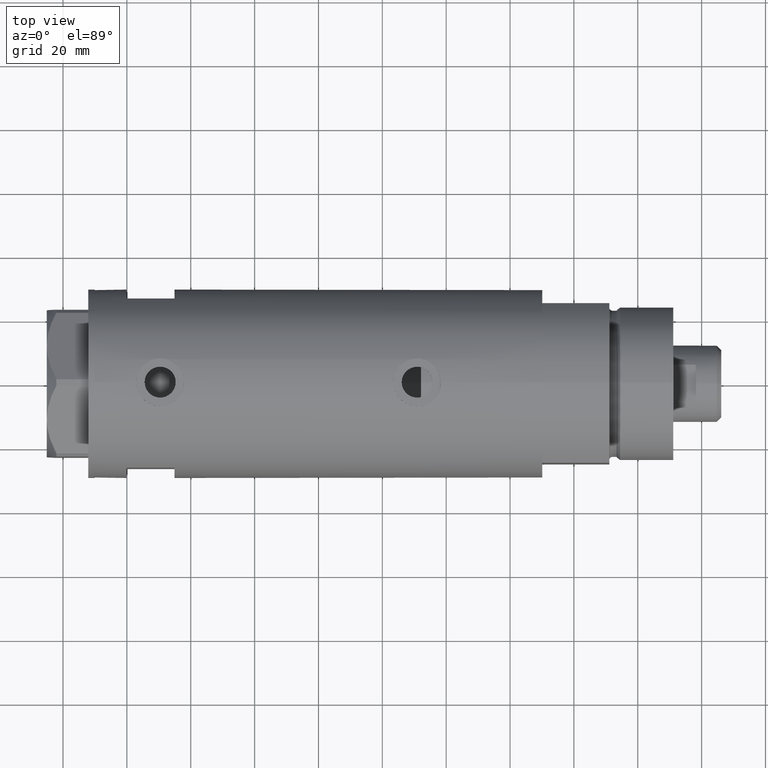
[diagram: clean part render]
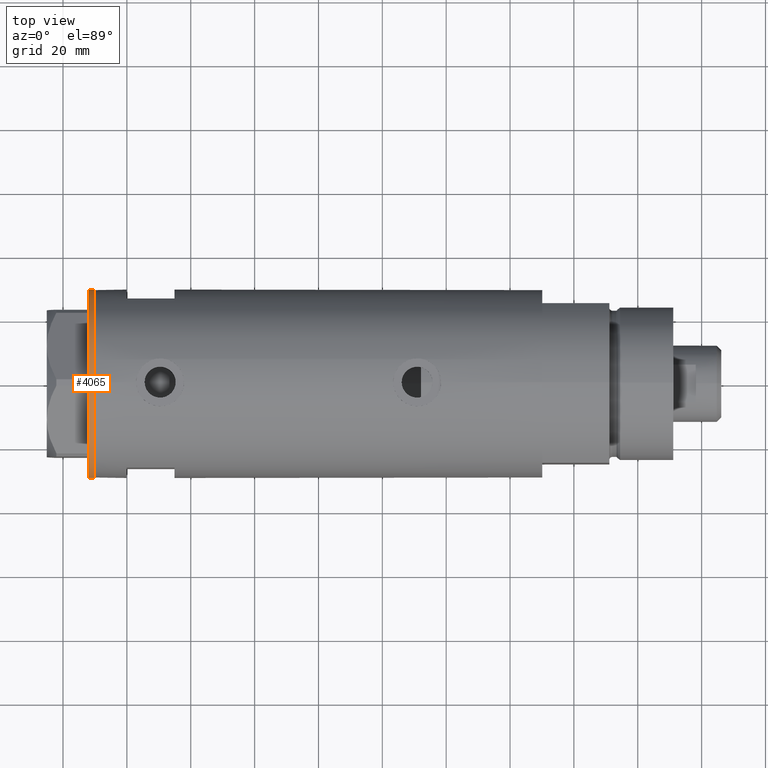
[diagram: same view with one face highlighted and labeled with its STEP entity id]
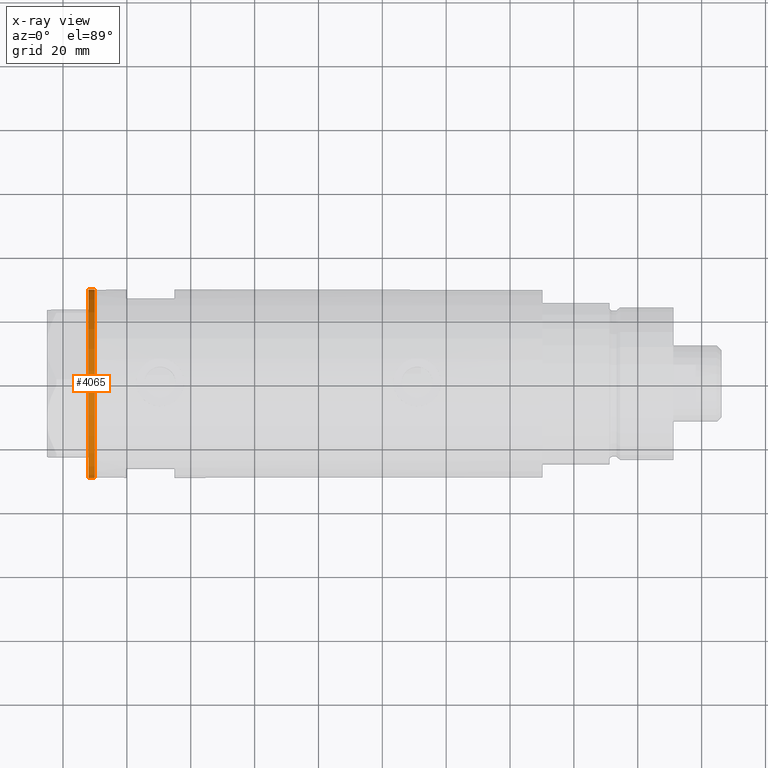
[diagram: x-ray of the same camera — body ghosted, the highlighted face saturated]
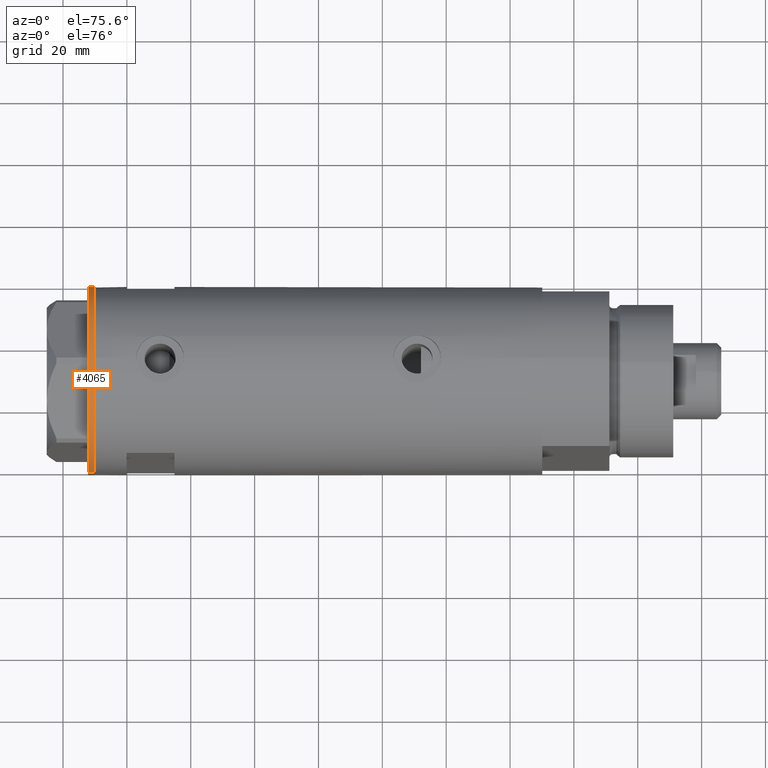
[diagram: same view with one face highlighted and labeled with its STEP entity id]
A machine part, top view. The second image highlights one B-rep face of the part: STEP entity #4065.
The next image is the same camera in x-ray: the body ghosted, the highlighted face saturated — about 0% of this face is hidden behind the body in this view.
A second angle (auxiliary view) of the same face is appended — the face is thin or edge-on in the first view.
In plain terms, the highlighted cylindrical surface (partial cylindrical patch) has radius 29.5 mm, axis along (-1, -0, 0).
Its self-contained STEP definition (entity closure, byte-faithful):
#199 = VECTOR ( 'NONE', #4413, 1000.000000000000000 ) ;
#381 = CARTESIAN_POINT ( 'NONE',  ( 0.000000000000000000, 0.000000000000000000, -2.000000000000000000 ) ) ;
#387 = ORIENTED_EDGE ( 'NONE', *, *, #4570, .F. ) ;
#486 = CARTESIAN_POINT ( 'NONE',  ( 29.50000000000000355, 0.000000000000000000, -2.000000000000000000 ) ) ;
#527 = CARTESIAN_POINT ( 'NONE',  ( -29.50000000000000355, 3.612708057484692393E-15, 0.000000000000000000 ) ) ;
#607 = CARTESIAN_POINT ( 'NONE',  ( 29.50000000000000355, 0.000000000000000000, 0.000000000000000000 ) ) ;
#1080 = CYLINDRICAL_SURFACE ( 'NONE', #3781, 29.50000000000000355 ) ;
#1444 = DIRECTION ( 'NONE',  ( -1.000000000000000000, 0.000000000000000000, 0.000000000000000000 ) ) ;
#1498 = DIRECTION ( 'NONE',  ( 0.000000000000000000, 0.000000000000000000, -1.000000000000000000 ) ) ;
#1682 = EDGE_CURVE ( 'NONE', #3133, #3594, #2702, .T. ) ;
#1806 = DIRECTION ( 'NONE',  ( -0.000000000000000000, -0.000000000000000000, 1.000000000000000000 ) ) ;
#1832 = VECTOR ( 'NONE', #3588, 1000.000000000000000 ) ;
#2002 = EDGE_CURVE ( 'NONE', #2687, #3594, #4735, .T. ) ;
#2099 = LINE ( 'NONE', #486, #1832 ) ;
#2194 = CARTESIAN_POINT ( 'NONE',  ( -29.50000000000000355, 3.612708057484692393E-15, -2.000000000000000000 ) ) ;
#2421 = VERTEX_POINT ( 'NONE', #3171 ) ;
#2428 = ORIENTED_EDGE ( 'NONE', *, *, #4446, .T. ) ;
#2687 = VERTEX_POINT ( 'NONE', #2194 ) ;
#2702 = CIRCLE ( 'NONE', #3003, 29.50000000000000355 ) ;
#2736 = CARTESIAN_POINT ( 'NONE',  ( 0.000000000000000000, 0.000000000000000000, 0.000000000000000000 ) ) ;
#2894 = FACE_OUTER_BOUND ( 'NONE', #3602, .T. ) ;
#2978 = ORIENTED_EDGE ( 'NONE', *, *, #1682, .T. ) ;
#3003 = AXIS2_PLACEMENT_3D ( 'NONE', #2736, #3890, #4246 ) ;
#3133 = VERTEX_POINT ( 'NONE', #607 ) ;
#3171 = CARTESIAN_POINT ( 'NONE',  ( 29.50000000000000355, 0.000000000000000000, -2.000000000000000000 ) ) ;
#3235 = DIRECTION ( 'NONE',  ( 1.000000000000000000, 0.000000000000000000, 0.000000000000000000 ) ) ;
#3588 = DIRECTION ( 'NONE',  ( -0.000000000000000000, -0.000000000000000000, 1.000000000000000000 ) ) ;
#3594 = VERTEX_POINT ( 'NONE', #527 ) ;
#3602 = EDGE_LOOP ( 'NONE', ( #3811, #387, #2428, #2978 ) ) ;
#3781 = AXIS2_PLACEMENT_3D ( 'NONE', #4395, #1806, #3235 ) ;
#3811 = ORIENTED_EDGE ( 'NONE', *, *, #2002, .F. ) ;
#3890 = DIRECTION ( 'NONE',  ( 0.000000000000000000, 0.000000000000000000, -1.000000000000000000 ) ) ;
#4065 = ADVANCED_FACE ( 'NONE', ( #2894 ), #1080, .T. ) ;
#4246 = DIRECTION ( 'NONE',  ( -1.000000000000000000, 0.000000000000000000, 0.000000000000000000 ) ) ;
#4309 = CIRCLE ( 'NONE', #4686, 29.50000000000000355 ) ;
#4395 = CARTESIAN_POINT ( 'NONE',  ( 0.000000000000000000, 0.000000000000000000, -2.000000000000000000 ) ) ;
#4413 = DIRECTION ( 'NONE',  ( -0.000000000000000000, -0.000000000000000000, 1.000000000000000000 ) ) ;
#4446 = EDGE_CURVE ( 'NONE', #2421, #3133, #2099, .T. ) ;
#4570 = EDGE_CURVE ( 'NONE', #2421, #2687, #4309, .T. ) ;
#4686 = AXIS2_PLACEMENT_3D ( 'NONE', #381, #1498, #1444 ) ;
#4735 = LINE ( 'NONE', #4789, #199 ) ;
#4789 = CARTESIAN_POINT ( 'NONE',  ( -29.50000000000000355, 3.612708057484692393E-15, -2.000000000000000000 ) ) ;